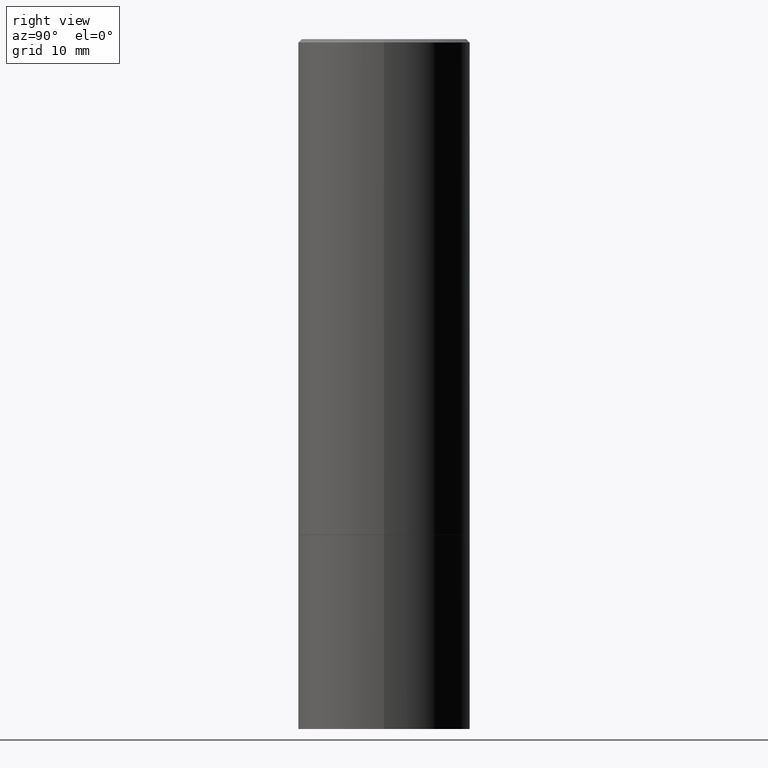
[diagram: clean part render]
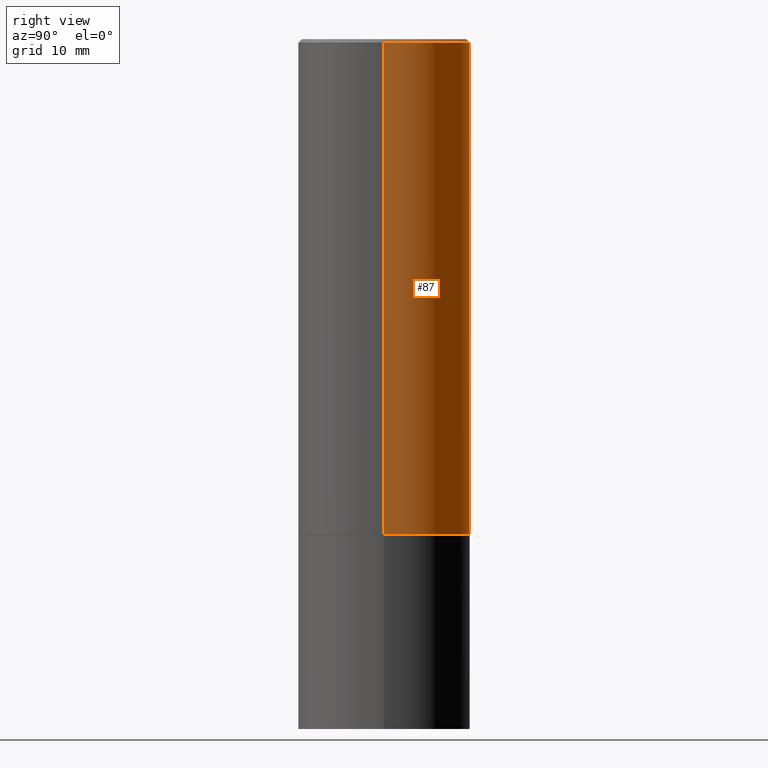
[diagram: same view with one face highlighted and labeled with its STEP entity id]
A machine part, right view. The second image highlights one B-rep face of the part: STEP entity #87.
In plain terms, the highlighted cylindrical surface (partial cylindrical patch) has radius 12.7 mm, axis along (-0, 0, 1).
Its self-contained STEP definition (entity closure, byte-faithful):
#3 = AXIS2_PLACEMENT_3D ( 'NONE', #108, #102, #76 ) ;
#6 = CARTESIAN_POINT ( 'NONE',  ( -0.5000000000000000000, -1.499459818505530375E-15, -2.874000000000000110 ) ) ;
#10 = FACE_OUTER_BOUND ( 'NONE', #211, .T. ) ;
#16 = ORIENTED_EDGE ( 'NONE', *, *, #162, .F. ) ;
#18 = ORIENTED_EDGE ( 'NONE', *, *, #326, .F. ) ;
#21 = LINE ( 'NONE', #75, #171 ) ;
#25 = LINE ( 'NONE', #166, #220 ) ;
#26 = EDGE_CURVE ( 'NONE', #140, #33, #63, .T. ) ;
#33 = VERTEX_POINT ( 'NONE', #6 ) ;
#63 = CIRCLE ( 'NONE', #310, 0.5000000000000000000 ) ;
#75 = CARTESIAN_POINT ( 'NONE',  ( -0.4999999999999998335, 3.552713678800499746E-15, -2.459467545127452330E-29 ) ) ;
#76 = DIRECTION ( 'NONE',  ( 1.000000000000000000, -6.982962677686266711E-15, 0.000000000000000000 ) ) ;
#87 = ADVANCED_FACE ( 'NONE', ( #10 ), #202, .T. ) ;
#97 = DIRECTION ( 'NONE',  ( -2.445468806185136597E-29, 3.491481338843145583E-15, 1.000000000000000000 ) ) ;
#102 = DIRECTION ( 'NONE',  ( -2.445468806185136597E-29, 3.491481338843145583E-15, 1.000000000000000000 ) ) ;
#108 = CARTESIAN_POINT ( 'NONE',  ( 4.890937612370295054E-31, -6.982962677686322424E-17, -0.02000000000000009062 ) ) ;
#113 = DIRECTION ( 'NONE',  ( -2.445468806185136597E-29, 3.491481338843145583E-15, 1.000000000000000000 ) ) ;
#120 = CARTESIAN_POINT ( 'NONE',  ( 0.000000000000000000, 0.000000000000000000, 0.000000000000000000 ) ) ;
#132 = CARTESIAN_POINT ( 'NONE',  ( 0.4999999999999996669, -3.500078625662626713E-15, -0.02000000000000009062 ) ) ;
#137 = DIRECTION ( 'NONE',  ( -2.445468806185136877E-29, 3.491481338843145188E-15, 1.000000000000000000 ) ) ;
#140 = VERTEX_POINT ( 'NONE', #167 ) ;
#145 = CARTESIAN_POINT ( 'NONE',  ( 7.028277348976082113E-29, -1.003451736783520168E-14, -2.874000000000000110 ) ) ;
#147 = AXIS2_PLACEMENT_3D ( 'NONE', #120, #97, #240 ) ;
#152 = EDGE_CURVE ( 'NONE', #33, #307, #21, .T. ) ;
#162 = EDGE_CURVE ( 'NONE', #140, #330, #25, .T. ) ;
#166 = CARTESIAN_POINT ( 'NONE',  ( 0.4999999999999998335, -3.491481338843132566E-15, 2.438088387897967336E-29 ) ) ;
#167 = CARTESIAN_POINT ( 'NONE',  ( 0.5000000000000000000, -1.352599870667833503E-14, -2.874000000000000110 ) ) ;
#171 = VECTOR ( 'NONE', #137, 39.37007874015748143 ) ;
#185 = CARTESIAN_POINT ( 'NONE',  ( -0.4999999999999996669, 3.421651712066267691E-15, -0.02000000000000009062 ) ) ;
#196 = DIRECTION ( 'NONE',  ( 1.000000000000000000, -6.982962677686266711E-15, 0.000000000000000000 ) ) ;
#202 = CYLINDRICAL_SURFACE ( 'NONE', #147, 0.4999999999999998335 ) ;
#211 = EDGE_LOOP ( 'NONE', ( #333, #349, #18, #16 ) ) ;
#220 = VECTOR ( 'NONE', #222, 39.37007874015748143 ) ;
#222 = DIRECTION ( 'NONE',  ( -2.445468806185136877E-29, 3.491481338843145188E-15, 1.000000000000000000 ) ) ;
#240 = DIRECTION ( 'NONE',  ( 1.000000000000000000, -6.982962677686267499E-15, 4.876176775795936353E-29 ) ) ;
#307 = VERTEX_POINT ( 'NONE', #185 ) ;
#310 = AXIS2_PLACEMENT_3D ( 'NONE', #145, #113, #196 ) ;
#326 = EDGE_CURVE ( 'NONE', #330, #307, #344, .T. ) ;
#330 = VERTEX_POINT ( 'NONE', #132 ) ;
#333 = ORIENTED_EDGE ( 'NONE', *, *, #26, .T. ) ;
#344 = CIRCLE ( 'NONE', #3, 0.4999999999999996669 ) ;
#349 = ORIENTED_EDGE ( 'NONE', *, *, #152, .T. ) ;